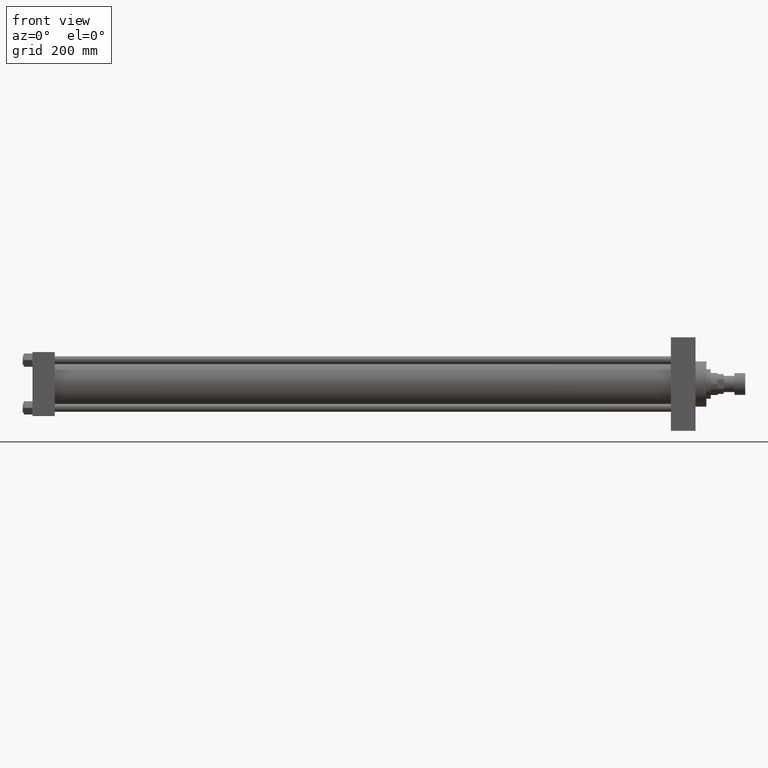
[diagram: clean part render]
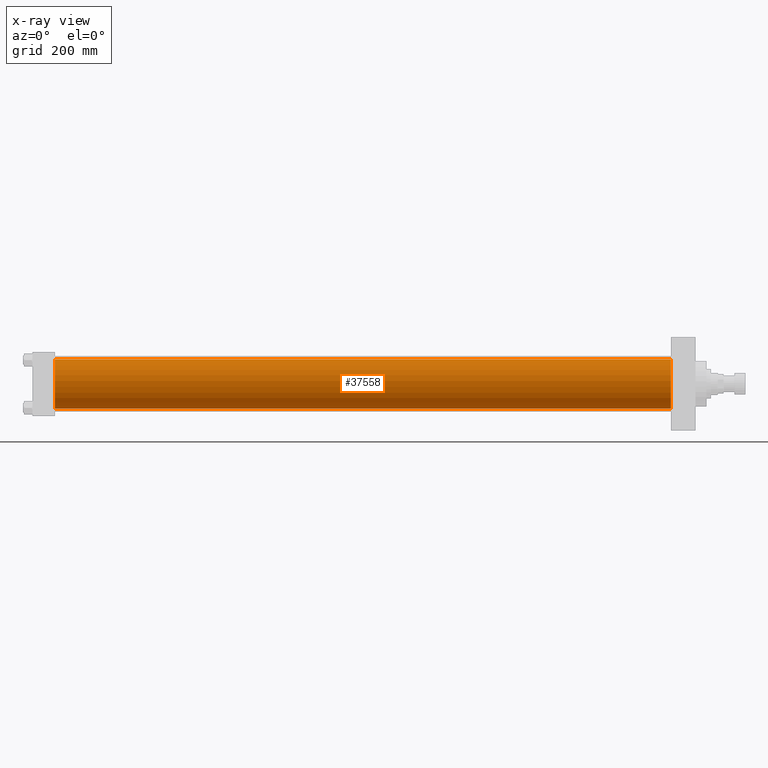
[diagram: x-ray — body ghosted, one internal face saturated and labeled with its STEP entity id]
A machine part, front view, then the same camera in x-ray: the body is ghosted and one INTERNAL B-rep face — a face not visible from any outside direction — is saturated and labeled: STEP entity #37558.
In plain terms, the highlighted cylindrical surface (edge-blend (fillet) strip) has radius 50 mm, axis along (-1, -0, -0).
Its self-contained STEP definition (entity closure, byte-faithful):
#1460 = DIRECTION ( 'NONE',  ( 1.000000000000000000, 0.000000000000000000, 0.000000000000000000 ) ) ;
#2656 = EDGE_CURVE ( 'NONE', #35724, #12251, #20126, .T. ) ;
#2776 = CARTESIAN_POINT ( 'NONE',  ( 45.00000000000000000, 3.521148781771555838E-15, -50.00000000000000000 ) ) ;
#2985 = VECTOR ( 'NONE', #23543, 1000.000000000000000 ) ;
#5101 = AXIS2_PLACEMENT_3D ( 'NONE', #28616, #48081, #39815 ) ;
#6651 = CARTESIAN_POINT ( 'NONE',  ( 1295.999999999999773, -2.602085213965210642E-15, 50.00000000000000000 ) ) ;
#7862 = CARTESIAN_POINT ( 'NONE',  ( 1295.999999999999773, -2.602085213965210642E-15, 0.000000000000000000 ) ) ;
#11341 = EDGE_CURVE ( 'NONE', #46084, #42784, #40695, .T. ) ;
#11913 = CIRCLE ( 'NONE', #16574, 50.00000000000000000 ) ;
#12251 = VERTEX_POINT ( 'NONE', #2776 ) ;
#13099 = EDGE_LOOP ( 'NONE', ( #38537, #19086, #29933, #34900 ) ) ;
#14564 = CARTESIAN_POINT ( 'NONE',  ( 1295.999999999999773, -2.602085213965210642E-15, 50.00000000000000000 ) ) ;
#15145 = CIRCLE ( 'NONE', #5101, 50.00000000000000000 ) ;
#15675 = EDGE_CURVE ( 'NONE', #42784, #12251, #11913, .T. ) ;
#16574 = AXIS2_PLACEMENT_3D ( 'NONE', #34297, #1460, #42543 ) ;
#19086 = ORIENTED_EDGE ( 'NONE', *, *, #2656, .T. ) ;
#19533 = DIRECTION ( 'NONE',  ( 0.000000000000000000, 0.000000000000000000, 1.000000000000000000 ) ) ;
#20015 = EDGE_CURVE ( 'NONE', #46084, #35724, #15145, .T. ) ;
#20126 = LINE ( 'NONE', #45451, #2985 ) ;
#21213 = CARTESIAN_POINT ( 'NONE',  ( 45.00000000000000000, -2.602085213965210642E-15, 50.00000000000000000 ) ) ;
#23543 = DIRECTION ( 'NONE',  ( -1.000000000000000000, -0.000000000000000000, -0.000000000000000000 ) ) ;
#25920 = VECTOR ( 'NONE', #44112, 1000.000000000000000 ) ;
#28616 = CARTESIAN_POINT ( 'NONE',  ( 1295.999999999999773, -2.602085213965210642E-15, 0.000000000000000000 ) ) ;
#29933 = ORIENTED_EDGE ( 'NONE', *, *, #15675, .F. ) ;
#30238 = FACE_OUTER_BOUND ( 'NONE', #13099, .T. ) ;
#34297 = CARTESIAN_POINT ( 'NONE',  ( 45.00000000000000000, -2.602085213965210642E-15, 0.000000000000000000 ) ) ;
#34900 = ORIENTED_EDGE ( 'NONE', *, *, #11341, .F. ) ;
#35724 = VERTEX_POINT ( 'NONE', #36996 ) ;
#36996 = CARTESIAN_POINT ( 'NONE',  ( 1295.999999999999773, 3.521148781771555838E-15, -50.00000000000000000 ) ) ;
#37558 = ADVANCED_FACE ( 'NONE', ( #30238 ), #45082, .F. ) ;
#38537 = ORIENTED_EDGE ( 'NONE', *, *, #20015, .T. ) ;
#39815 = DIRECTION ( 'NONE',  ( 0.000000000000000000, 0.000000000000000000, -1.000000000000000000 ) ) ;
#40695 = LINE ( 'NONE', #6651, #25920 ) ;
#40959 = DIRECTION ( 'NONE',  ( -1.000000000000000000, -0.000000000000000000, -0.000000000000000000 ) ) ;
#41927 = AXIS2_PLACEMENT_3D ( 'NONE', #7862, #40959, #19533 ) ;
#42543 = DIRECTION ( 'NONE',  ( 0.000000000000000000, 0.000000000000000000, -1.000000000000000000 ) ) ;
#42784 = VERTEX_POINT ( 'NONE', #21213 ) ;
#44112 = DIRECTION ( 'NONE',  ( -1.000000000000000000, -0.000000000000000000, -0.000000000000000000 ) ) ;
#45082 = CYLINDRICAL_SURFACE ( 'NONE', #41927, 50.00000000000000000 ) ;
#45451 = CARTESIAN_POINT ( 'NONE',  ( 1295.999999999999773, 3.521148781771555838E-15, -50.00000000000000000 ) ) ;
#46084 = VERTEX_POINT ( 'NONE', #14564 ) ;
#48081 = DIRECTION ( 'NONE',  ( 1.000000000000000000, 0.000000000000000000, 0.000000000000000000 ) ) ;